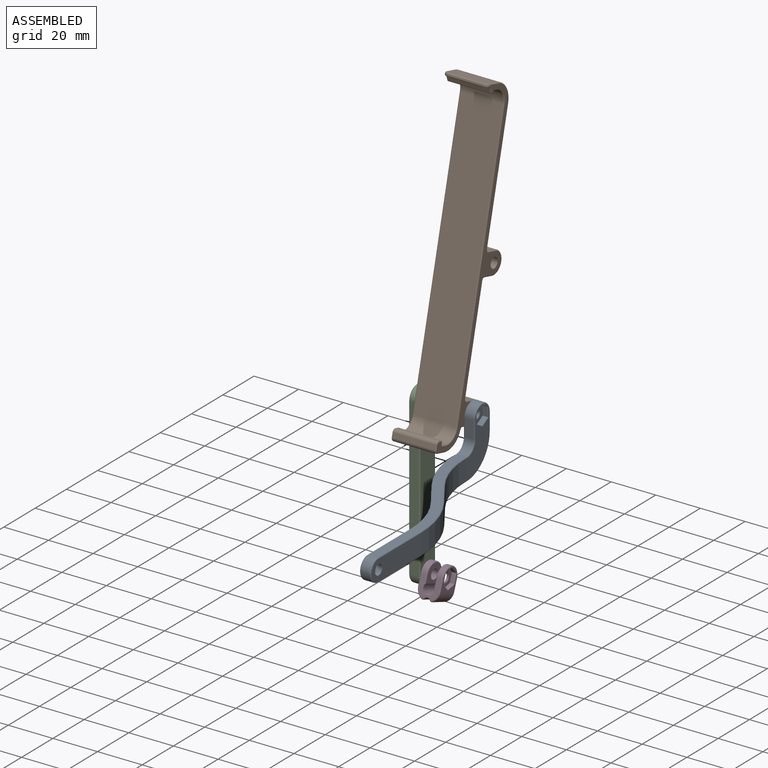
[diagram: assembled view]
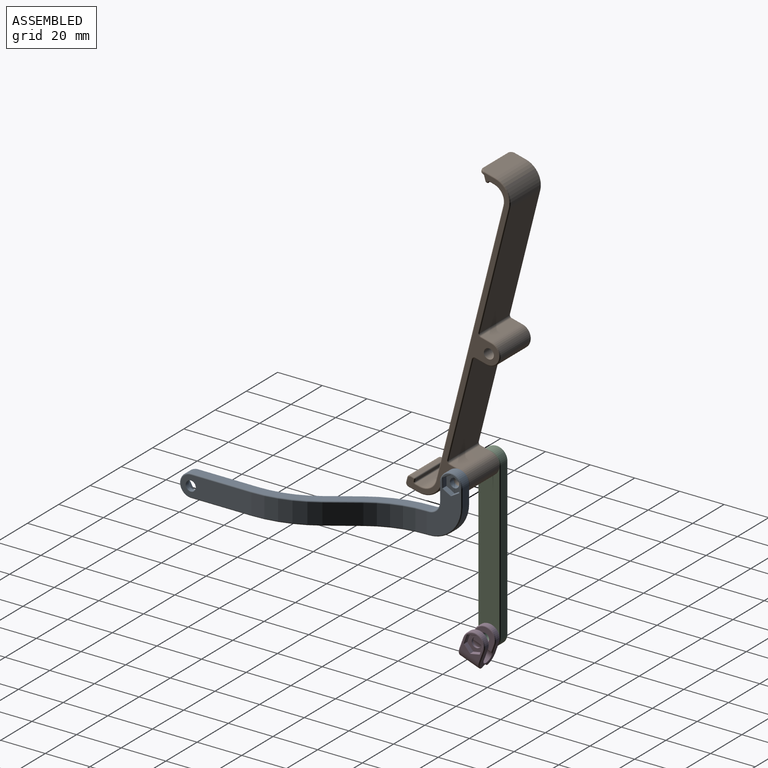
[diagram: assembled view, second angle]
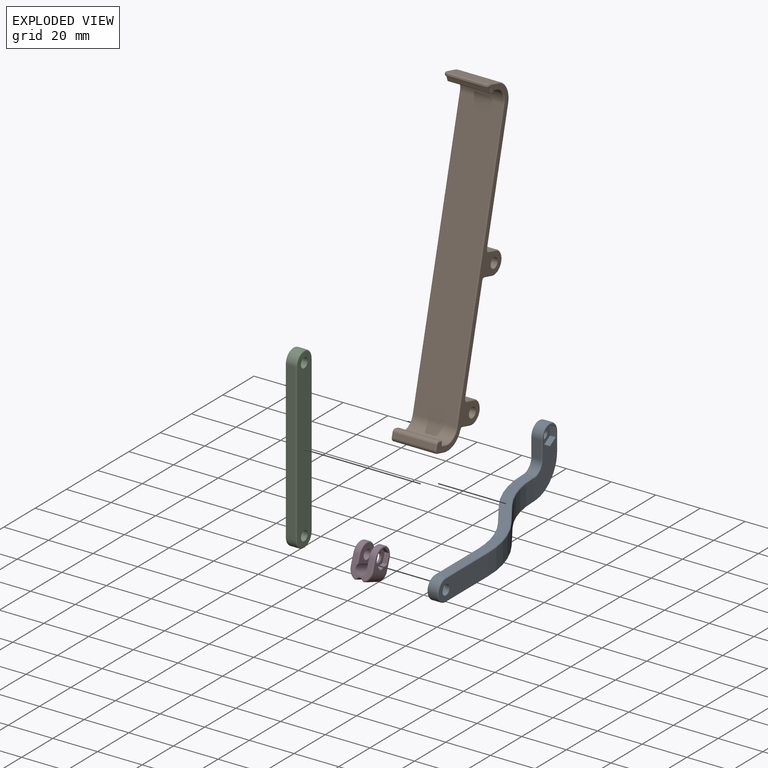
[diagram: exploded view]
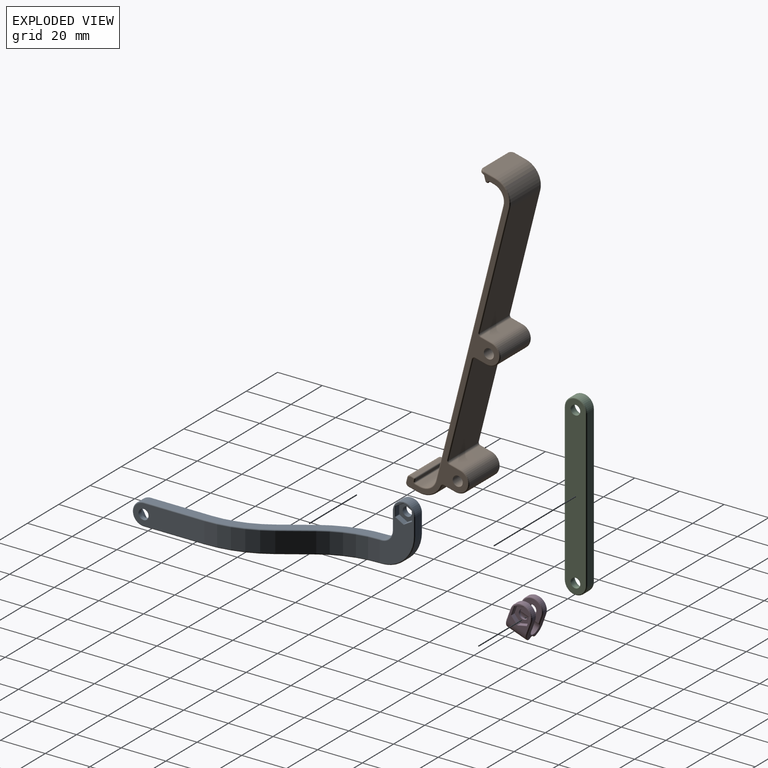
[diagram: exploded view, second angle]
ASSEMBLY  parts=4 mates=3
PART A: 80 faces, bbox 36.2x111.6x29.6 mm
  f0: plane 27x15.19mm, normal (1,0,0), area 200mm2, adj f12,f23,f25,f27,f29,f31,f33,f35
  f1: cylinder r=2.25mm len=4.5mm, axis (1,0,0), area 28.3mm2, adj f7,f59
  f2: cylinder r=2.1mm len=4.2mm, axis (1,0,0), area 33mm2, adj f4,f58
  f3: plane 8x4mm, normal (0,1,0), area 32mm2, adj f16,f19,f31,f48
  f4: plane 27x15.19mm, normal (-1,0,0), area 237.5mm2, adj f2,f13,f40,f42,f44,f46,f48,f50
  f5: plane 12.5x9mm, normal (-0.83,-0.56,0), area 135.5mm2, adj f11,f13,f36,f47
  f6: plane 31.71x9mm, normal (-1,0,0), area 226.7mm2, adj f11,f39,f41,f43,f74,f75,f76,f77
  f7: plane 31.71x9mm, normal (1,0,0), area 260.8mm2, adj f1,f14,f24,f26,f28
  f8: plane 12.5x9mm, normal (0.83,0.56,0), area 135.5mm2, adj f12,f14,f20,f32
  f9: plane 90x27.5mm, normal (0,0,1), area 382.3mm2, adj f17,f18,f20,f21,f22,f23,f24,f36
  f10: plane 90x27.5mm, normal (0,0,-1), area 382.3mm2, adj f18,f19,f28,f30,f32,f34,f35,f43
  f11: cylinder r=42mm len=23.41mm, axis (0,0,1), area 223.5mm2, adj f5,f6,f37,f45
  f12: cylinder r=42mm len=23.41mm, axis (0,0,1), area 223.5mm2, adj f0,f8,f21,f34
  f13: cylinder r=47mm len=26.2mm, axis (0,0,-1), area 250.1mm2, adj f4,f5,f38,f49
  f14: cylinder r=47mm len=26.2mm, axis (0,0,1), area 250.1mm2, adj f7,f8,f22,f30
  f15: plane 8x4mm, normal (0,-1,0), area 32mm2, adj f16,f17,f27,f44
  f16: cylinder r=5mm len=10mm, axis (1,0,0), area 62.8mm2, adj f3,f15,f29,f46
  f17: cylinder r=5mm len=5mm, axis (-1,0,0), area 31.4mm2, adj f9,f15,f25,f42
  f18: cylinder r=5mm len=10mm, axis (-1,0,0), area 62.8mm2, adj f9,f10,f26,f41
  f19: cylinder r=15mm len=15mm, axis (-1,0,0), area 94.2mm2, adj f3,f10,f33,f50
  f20: cylinder r=0.5mm len=12.77mm, axis (0.56,-0.83,0), area 11.8mm2, adj f8,f9,f21,f22
  f21: torus R=42.5mm, axis (0,0,1), area 19.6mm2, adj f9,f12,f20,f23
  f22: torus R=46.5mm, axis (0,0,1), area 21.7mm2, adj f9,f14,f20,f24
  f23: cylinder r=0.5mm len=0.69mm, axis (0,-1,0), area 0.5mm2, adj f0,f9,f21,f25
  f24: cylinder r=0.5mm len=27.21mm, axis (0,-1,0), area 21.4mm2, adj f7,f9,f22,f26
  f25: torus R=5.5mm, axis (1,0,0), area 6.4mm2, adj f0,f17,f23,f27
  f26: torus R=4.5mm, axis (-1,0,0), area 11.9mm2, adj f7,f18,f24,f28
  f27: cylinder r=0.5mm len=8mm, axis (0,0,-1), area 6.3mm2, adj f0,f15,f25,f29
  f28: cylinder r=0.5mm len=27.21mm, axis (0,1,0), area 21.4mm2, adj f7,f10,f26,f30
  f29: torus R=4.5mm, axis (1,0,0), area 11.9mm2, adj f0,f16,f27,f31
  f30: torus R=46.5mm, axis (0,0,1), area 21.7mm2, adj f10,f14,f28,f32
  f31: cylinder r=0.5mm len=8mm, axis (0,0,1), area 6.3mm2, adj f0,f3,f29,f33
  f32: cylinder r=0.5mm len=12.77mm, axis (-0.56,0.83,0), area 11.8mm2, adj f8,f10,f30,f34
  f33: torus R=14.5mm, axis (1,0,0), area 18.3mm2, adj f0,f19,f31,f35
  f34: torus R=42.5mm, axis (0,0,1), area 19.6mm2, adj f10,f12,f32,f35
  f35: cylinder r=0.5mm len=0.69mm, axis (0,1,0), area 0.5mm2, adj f0,f10,f33,f34
  f36: cylinder r=0.5mm len=12.77mm, axis (-0.56,0.83,0), area 11.8mm2, adj f5,f9,f37,f38
  f37: torus R=42.5mm, axis (0,0,1), area 19.6mm2, adj f9,f11,f36,f39
  f38: torus R=46.5mm, axis (0,0,1), area 21.7mm2, adj f9,f13,f36,f40
  f39: cylinder r=0.5mm len=27.21mm, axis (0,1,0), area 21.4mm2, adj f6,f9,f37,f41
  f40: cylinder r=0.5mm len=0.69mm, axis (0,1,0), area 0.5mm2, adj f4,f9,f38,f42
  f41: torus R=4.5mm, axis (-1,0,0), area 11.9mm2, adj f6,f18,f39,f43
  f42: torus R=5.5mm, axis (-1,0,0), area 6.4mm2, adj f4,f17,f40,f44
  f43: cylinder r=0.5mm len=27.21mm, axis (0,-1,0), area 21.4mm2, adj f6,f10,f41,f45
  f44: cylinder r=0.5mm len=8mm, axis (0,0,-1), area 6.3mm2, adj f4,f15,f42,f46
  f45: torus R=42.5mm, axis (0,0,1), area 19.6mm2, adj f10,f11,f43,f47
  f46: torus R=4.5mm, axis (-1,0,0), area 11.9mm2, adj f4,f16,f44,f48
  f47: cylinder r=0.5mm len=12.77mm, axis (0.56,-0.83,0), area 11.8mm2, adj f5,f10,f45,f49
  f48: cylinder r=0.5mm len=8mm, axis (0,0,1), area 6.3mm2, adj f3,f4,f46,f50
  f49: torus R=46.5mm, axis (0,0,1), area 21.7mm2, adj f10,f13,f47,f51
  f50: torus R=14.5mm, axis (-1,0,0), area 18.3mm2, adj f4,f19,f48,f51
  f51: cylinder r=0.5mm len=0.69mm, axis (0,-1,0), area 0.5mm2, adj f4,f10,f49,f50
  f52: plane 4.21x2.3mm, normal (0,-1,-0.01), area 9.7mm2, adj f53,f57,f58,f66
  f53: plane 3.68x2.3mm, normal (0,-0.49,-0.87), area 9.7mm2, adj f52,f54,f58,f68
  f54: plane 3.62x2.3mm, normal (0,0.51,-0.86), area 9.7mm2, adj f53,f55,f58,f71
  f55: plane 4.1x2.3mm, normal (0,1,0.01), area 9.4mm2, adj f54,f58,f69,f73
  f56: plane 3.58x2.3mm, normal (0,0.49,0.87), area 9.4mm2, adj f57,f58,f69,f70
  f57: plane 3.62x2.3mm, normal (0,-0.51,0.86), area 9.7mm2, adj f52,f56,f58,f67
  f58: plane 8.43x7.35mm, normal (1,0,0), area 32.3mm2, adj f2,f52,f53,f54,f55,f56,f57,f69
  f59: plane 8.31x7.2mm, normal (-1,0,0), area 29mm2, adj f1,f60,f61,f62,f63,f64,f65
  f60: plane 3.6x2.8mm, normal (0,0.87,-0.5), area 11.6mm2, adj f59,f61,f65,f76
  f61: plane 4.16x2.8mm, normal (0,0,-1), area 11.6mm2, adj f59,f60,f62,f74
  f62: plane 3.6x2.8mm, normal (0,-0.87,-0.5), area 11.6mm2, adj f59,f61,f63,f75
  f63: plane 3.6x2.8mm, normal (0,-0.87,0.5), area 11.6mm2, adj f59,f62,f64,f77
  f64: plane 4.16x2.8mm, normal (0,0,1), area 11.6mm2, adj f59,f63,f65,f79
  f65: plane 3.6x2.8mm, normal (0,0.87,0.5), area 11.6mm2, adj f59,f60,f64,f78
  f66: cylinder r=0.2mm len=4.45mm, axis (0,0.01,-1), area 1.4mm2, adj f0,f52,f67,f68
  f67: cylinder r=0.2mm len=3.92mm, axis (0,-0.86,-0.51), area 1.4mm2, adj f0,f57,f66,f70
  f68: cylinder r=0.2mm len=3.98mm, axis (0,0.87,-0.49), area 1.4mm2, adj f0,f53,f66,f71
  f69: cylinder r=0.2mm len=2.3mm, axis (-1,0,0), area 0.5mm2, adj f55,f56,f58,f72
  f70: cylinder r=0.2mm len=3.77mm, axis (0,-0.87,0.49), area 1.3mm2, adj f0,f56,f67,f72
  f71: cylinder r=0.2mm len=3.92mm, axis (0,0.86,0.51), area 1.4mm2, adj f0,f54,f68,f73
  f72: torus R=0.4mm, axis (1,0,0), area 0.1mm2, adj f0,f69,f70,f73
  f73: cylinder r=0.2mm len=4.22mm, axis (0,-0.01,1), area 1.3mm2, adj f0,f55,f71,f72
  f74: cylinder r=0.2mm len=4.39mm, axis (0,-1,0), area 1.3mm2, adj f6,f61,f75,f76
  f75: cylinder r=0.2mm len=3.9mm, axis (0,-0.5,0.87), area 1.3mm2, adj f6,f62,f74,f77
  f76: cylinder r=0.2mm len=3.9mm, axis (0,-0.5,-0.87), area 1.3mm2, adj f6,f60,f74,f78
  f77: cylinder r=0.2mm len=3.9mm, axis (0,0.5,0.87), area 1.3mm2, adj f6,f63,f75,f79
  f78: cylinder r=0.2mm len=3.9mm, axis (0,0.5,-0.87), area 1.3mm2, adj f6,f65,f76,f79
  f79: cylinder r=0.2mm len=4.39mm, axis (0,1,0), area 1.3mm2, adj f6,f64,f77,f78
PART B: 121 faces, bbox 20.3x27.6x142.5 mm
  f0: plane 55.5x19mm, normal (0,1,0), area 1054.5mm2, adj f27,f42,f44,f57
  f1: plane 19x6.5mm, normal (0,0,1), area 122.5mm2, adj f27,f45,f47,f49,f51,f53
  f2: plane 16x0.5mm, normal (0,-1,0), area 8mm2, adj f31,f32,f49,f114
  f3: plane 18.96x1.27mm, normal (0,0,-1), area 23.1mm2, adj f33,f112,f114,f116
  f4: plane 19x2mm, normal (0,-0.87,-0.5), area 43.9mm2, adj f33,f34,f106,f119
  f5: plane 19x0.42mm, normal (0,0,-1), area 8mm2, adj f34,f35,f102,f115
  f6: plane 19x0.5mm, normal (0,0.87,-0.5), area 11mm2, adj f35,f36,f98,f111
  f7: plane 19x1.63mm, normal (0,0,-1), area 31mm2, adj f25,f36,f94,f107
  f8: plane 123x19mm, normal (0,-1,0), area 2337mm2, adj f25,f26,f90,f103
  f9: plane 19x2mm, normal (0,0,1), area 38mm2, adj f26,f37,f86,f99
  f10: plane 19x1mm, normal (0,1,0), area 19mm2, adj f37,f38,f82,f95
  f11: plane 19x1.5mm, normal (0,0,1), area 28.5mm2, adj f29,f38,f78,f91
  f12: plane 19x2mm, normal (0,-1,0), area 38mm2, adj f29,f30,f74,f87
  f13: plane 19x4.51mm, normal (0,0,-1), area 85.8mm2, adj f28,f30,f70,f83
  f14: plane 19x5.1mm, normal (0,0,-1), area 96.9mm2, adj f15,f39,f64,f77
  f15: cylinder r=5mm len=19mm, axis (-1,0,0), area 298.5mm2, adj f14,f16,f62,f75
  f16: plane 19x5mm, normal (0,0,1), area 95mm2, adj f15,f40,f60,f73
  f17: plane 45x19mm, normal (0,1,0), area 855mm2, adj f40,f41,f56,f69
  f18: plane 19x5mm, normal (0,0,-1), area 95mm2, adj f19,f41,f52,f65
  f19: cylinder r=5mm len=19mm, axis (-1,0,0), area 298.5mm2, adj f18,f21,f50,f63
  f20: cylinder r=2.25mm len=20mm, axis (-1,0,0), area 282.7mm2, adj f23,f24
  f21: plane 19x5mm, normal (0,0,1), area 95mm2, adj f19,f42,f48,f61
  f22: cylinder r=2.25mm len=20mm, axis (-1,0,0), area 282.7mm2, adj f23,f24
  f23: plane 140x25mm, normal (1,0,0), area 469.6mm2, adj f20,f22,f32,f53,f55,f57,f59,f61
  f24: plane 140x25mm, normal (-1,0,0), area 469.6mm2, adj f20,f22,f31,f43,f44,f45,f46,f48
  f25: cylinder r=6mm len=19mm, axis (1,0,0), area 179.1mm2, adj f7,f8,f92,f105
  f26: cylinder r=6mm len=19mm, axis (-1,0,0), area 179.1mm2, adj f8,f9,f88,f101
  f27: cylinder r=9mm len=19mm, axis (-1,0,0), area 268.6mm2, adj f0,f1,f43,f55
  f28: cylinder r=9mm len=19mm, axis (1,0,0), area 242.9mm2, adj f13,f39,f68,f81
  f29: cylinder r=1.5mm len=19mm, axis (-1,0,0), area 44.8mm2, adj f11,f12,f76,f89
  f30: cylinder r=1.5mm len=19mm, axis (1,0,0), area 44.8mm2, adj f12,f13,f72,f85
  f31: cylinder r=2mm len=2mm, axis (0,0,-1), area 1.6mm2, adj f2,f24,f47,f110,f112
  f32: cylinder r=2mm len=2mm, axis (0,0,1), area 1.6mm2, adj f2,f23,f51,f116,f118
  f33: cylinder r=0.5mm len=19mm, axis (1,0,0), area 9.9mm2, adj f3,f4,f108,f110,f118,f120
  f34: cylinder r=0.5mm len=19mm, axis (-1,0,0), area 9.9mm2, adj f4,f5,f104,f117
  f35: cylinder r=0.5mm len=19mm, axis (1,0,0), area 9.9mm2, adj f5,f6,f100,f113
  f36: cylinder r=0.5mm len=19mm, axis (-1,0,0), area 9.9mm2, adj f6,f7,f96,f109
  f37: cylinder r=0.5mm len=19mm, axis (1,0,0), area 14.9mm2, adj f9,f10,f84,f97
  f38: cylinder r=0.5mm len=19mm, axis (1,0,0), area 14.9mm2, adj f10,f11,f80,f93
  f39: cylinder r=1mm len=19mm, axis (1,0,0), area 27mm2, adj f14,f28,f66,f79
  f40: cylinder r=1mm len=19mm, axis (1,0,0), area 29.8mm2, adj f16,f17,f58,f71
  f41: cylinder r=1mm len=19mm, axis (-1,0,0), area 29.8mm2, adj f17,f18,f54,f67
  f42: cylinder r=1mm len=19mm, axis (-1,0,0), area 29.8mm2, adj f0,f21,f46,f59
  f43: torus R=8.5mm, axis (1,0,0), area 10.9mm2, adj f24,f27,f44,f45
  f44: cylinder r=0.5mm len=55.5mm, axis (0,0,1), area 43.6mm2, adj f0,f24,f43,f46
  f45: cylinder r=0.5mm len=5mm, axis (0,-1,0), area 3.9mm2, adj f1,f24,f43,f47
  f46: torus R=1.5mm, axis (1,0,0), area 1.5mm2, adj f24,f42,f44,f48
  f47: torus R=1.5mm, axis (0,0,1), area 2.2mm2, adj f1,f31,f45,f49
  f48: cylinder r=0.5mm len=5mm, axis (0,-1,0), area 3.9mm2, adj f21,f24,f46,f50
  f49: cylinder r=0.5mm len=16mm, axis (-1,0,0), area 12.6mm2, adj f1,f2,f47,f51
  f50: torus R=4.5mm, axis (1,0,0), area 11.9mm2, adj f19,f24,f48,f52
  f51: torus R=1.5mm, axis (0,0,1), area 2.2mm2, adj f1,f32,f49,f53
  f52: cylinder r=0.5mm len=5mm, axis (0,1,0), area 3.9mm2, adj f18,f24,f50,f54
  f53: cylinder r=0.5mm len=5mm, axis (0,1,0), area 3.9mm2, adj f1,f23,f51,f55
  f54: torus R=1.5mm, axis (1,0,0), area 1.5mm2, adj f24,f41,f52,f56
  f55: torus R=8.5mm, axis (1,0,0), area 10.9mm2, adj f23,f27,f53,f57
  f56: cylinder r=0.5mm len=45mm, axis (0,0,1), area 35.3mm2, adj f17,f24,f54,f58
  f57: cylinder r=0.5mm len=55.5mm, axis (0,0,-1), area 43.6mm2, adj f0,f23,f55,f59
  f58: torus R=1.5mm, axis (1,0,0), area 1.5mm2, adj f24,f40,f56,f60
  f59: torus R=1.5mm, axis (1,0,0), area 1.5mm2, adj f23,f42,f57,f61
  f60: cylinder r=0.5mm len=5mm, axis (0,-1,0), area 3.9mm2, adj f16,f24,f58,f62
  f61: cylinder r=0.5mm len=5mm, axis (0,1,0), area 3.9mm2, adj f21,f23,f59,f63
  f62: torus R=4.5mm, axis (1,0,0), area 11.9mm2, adj f15,f24,f60,f64
  f63: torus R=4.5mm, axis (1,0,0), area 11.9mm2, adj f19,f23,f61,f65
  f64: cylinder r=0.5mm len=5.1mm, axis (0,1,0), area 4mm2, adj f14,f24,f62,f66
  f65: cylinder r=0.5mm len=5mm, axis (0,-1,0), area 3.9mm2, adj f18,f23,f63,f67
  f66: torus R=1.5mm, axis (1,0,0), area 1.3mm2, adj f24,f39,f64,f68
  f67: torus R=1.5mm, axis (1,0,0), area 1.5mm2, adj f23,f41,f65,f69
  f68: torus R=8.5mm, axis (1,0,0), area 9.8mm2, adj f24,f28,f66,f70
  f69: cylinder r=0.5mm len=45mm, axis (0,0,-1), area 35.3mm2, adj f17,f23,f67,f71
  f70: cylinder r=0.5mm len=4.51mm, axis (0,1,0), area 3.5mm2, adj f13,f24,f68,f72
  f71: torus R=1.5mm, axis (1,0,0), area 1.5mm2, adj f23,f40,f69,f73
  f72: torus R=1mm, axis (1,0,0), area 1.6mm2, adj f24,f30,f70,f74
  f73: cylinder r=0.5mm len=5mm, axis (0,1,0), area 3.9mm2, adj f16,f23,f71,f75
  f74: cylinder r=0.5mm len=2mm, axis (0,0,-1), area 1.6mm2, adj f12,f24,f72,f76
  f75: torus R=4.5mm, axis (1,0,0), area 11.9mm2, adj f15,f23,f73,f77
  f76: torus R=1mm, axis (1,0,0), area 1.6mm2, adj f24,f29,f74,f78
  f77: cylinder r=0.5mm len=5.1mm, axis (0,-1,0), area 4mm2, adj f14,f23,f75,f79
  f78: cylinder r=0.5mm len=1.5mm, axis (0,-1,0), area 1.2mm2, adj f11,f24,f76,f80
  f79: torus R=1.5mm, axis (1,0,0), area 1.3mm2, adj f23,f39,f77,f81
  f80: sphere r=0.5mm, area 0.4mm2, adj f38,f78,f82
  f81: torus R=8.5mm, axis (1,0,0), area 9.8mm2, adj f23,f28,f79,f83
  f82: cylinder r=0.5mm len=1mm, axis (0,0,1), area 0.8mm2, adj f10,f24,f80,f84
  f83: cylinder r=0.5mm len=4.51mm, axis (0,-1,0), area 3.5mm2, adj f13,f23,f81,f85
  f84: torus R=1mm, axis (1,0,0), area 0.8mm2, adj f24,f37,f82,f86
  f85: torus R=1mm, axis (1,0,0), area 1.6mm2, adj f23,f30,f83,f87
  f86: cylinder r=0.5mm len=2mm, axis (0,-1,0), area 1.6mm2, adj f9,f24,f84,f88
  f87: cylinder r=0.5mm len=2mm, axis (0,0,1), area 1.6mm2, adj f12,f23,f85,f89
  f88: torus R=6.5mm, axis (1,0,0), area 7.6mm2, adj f24,f26,f86,f90
  f89: torus R=1mm, axis (1,0,0), area 1.6mm2, adj f23,f29,f87,f91
  f90: cylinder r=0.5mm len=123mm, axis (0,0,-1), area 96.6mm2, adj f8,f24,f88,f92
  f91: cylinder r=0.5mm len=1.5mm, axis (0,1,0), area 1.2mm2, adj f11,f23,f89,f93
  f92: torus R=6.5mm, axis (1,0,0), area 7.6mm2, adj f24,f25,f90,f94
  f93: sphere r=0.5mm, area 0.4mm2, adj f38,f91,f95
  f94: cylinder r=0.5mm len=1.63mm, axis (0,1,0), area 1.3mm2, adj f7,f24,f92,f96
  f95: cylinder r=0.5mm len=1mm, axis (0,0,-1), area 0.8mm2, adj f10,f23,f93,f97
  f96: torus R=1mm, axis (1,0,0), area 0.6mm2, adj f24,f36,f94,f98
  f97: torus R=1mm, axis (1,0,0), area 0.8mm2, adj f23,f37,f95,f99
  f98: cylinder r=0.5mm len=0.75mm, axis (0,0.5,0.87), area 0.5mm2, adj f6,f24,f96,f100
  f99: cylinder r=0.5mm len=2mm, axis (0,1,0), area 1.6mm2, adj f9,f23,f97,f101
  f100: sphere r=0.5mm, area 0.3mm2, adj f35,f98,f102
  f101: torus R=6.5mm, axis (1,0,0), area 7.6mm2, adj f23,f26,f99,f103
  f102: cylinder r=0.5mm len=0.5mm, axis (0,1,0), area 0.3mm2, adj f5,f24,f100,f104
  f103: cylinder r=0.5mm len=123mm, axis (0,0,1), area 96.6mm2, adj f8,f23,f101,f105
  f104: sphere r=0.5mm, area 0.3mm2, adj f34,f102,f106
  f105: torus R=6.5mm, axis (1,0,0), area 7.6mm2, adj f23,f25,f103,f107
  f106: cylinder r=0.5mm len=2.25mm, axis (0,0.5,-0.87), area 1.8mm2, adj f4,f24,f104,f108
  f107: cylinder r=0.5mm len=1.63mm, axis (0,-1,0), area 1.3mm2, adj f7,f23,f105,f109
  f108: torus R=1mm, axis (1,0,0), area 0.4mm2, adj f24,f33,f106,f110
  f109: torus R=1mm, axis (1,0,0), area 0.6mm2, adj f23,f36,f107,f111
  f110: bspline ~0.85x0.58mm, area 0.2mm2, adj f31,f33,f108,f112
  f111: cylinder r=0.5mm len=0.75mm, axis (0,-0.5,-0.87), area 0.5mm2, adj f6,f23,f109,f113
  f112: torus R=1.5mm, axis (0,0,-1), area 2mm2, adj f3,f31,f110,f114
  f113: sphere r=0.5mm, area 0.3mm2, adj f35,f111,f115
  f114: cylinder r=0.5mm len=16mm, axis (-1,0,0), area 12.6mm2, adj f2,f3,f112,f116
  f115: cylinder r=0.5mm len=0.5mm, axis (0,-1,0), area 0.3mm2, adj f5,f23,f113,f117
  f116: torus R=1.5mm, axis (0,0,-1), area 2mm2, adj f3,f32,f114,f118
  f117: sphere r=0.5mm, area 0.3mm2, adj f34,f115,f119
  f118: bspline ~0.85x0.58mm, area 0.2mm2, adj f32,f33,f116,f120
  f119: cylinder r=0.5mm len=2.25mm, axis (0,-0.5,0.87), area 1.8mm2, adj f4,f23,f117,f120
  f120: torus R=1mm, axis (1,0,0), area 0.4mm2, adj f23,f33,f118,f119
PART C: 22 faces, bbox 5x10.8x80.8 mm
  f0: cylinder r=2.15mm len=4.3mm, axis (-1,0,0), area 27mm2, adj f6,f11
  f1: cylinder r=2.15mm len=4.3mm, axis (-1,0,0), area 27mm2, adj f6,f9
  f2: plane 70x4mm, normal (0,-1,0), area 280mm2, adj f3,f5,f12,f16
  f3: cylinder r=5mm len=10mm, axis (-1,0,0), area 62.8mm2, adj f2,f4,f13,f17
  f4: plane 70x4mm, normal (0,1,0), area 280mm2, adj f3,f5,f15,f19
  f5: cylinder r=5mm len=10mm, axis (-1,0,0), area 62.8mm2, adj f2,f4,f14,f18
  f6: plane 79x9mm, normal (1,0,0), area 664.6mm2, adj f0,f1,f16,f17,f18,f19
  f7: plane 79x9mm, normal (-1,0,0), area 585.4mm2, adj f12,f13,f14,f15,f20,f21
  f8: cylinder r=3.65mm len=7.3mm, axis (-1,0,0), area 57.3mm2, adj f9,f20
  f9: plane 7.3x7.3mm, normal (-1,0,0), area 27.3mm2, adj f1,f8
  f10: cylinder r=3.65mm len=7.3mm, axis (-1,0,0), area 57.3mm2, adj f11,f21
  f11: plane 7.3x7.3mm, normal (-1,0,0), area 27.3mm2, adj f0,f10
  f12: cylinder r=0.5mm len=70mm, axis (0,0,-1), area 55mm2, adj f2,f7,f13,f14
  f13: torus R=4.5mm, axis (1,0,0), area 11.9mm2, adj f3,f7,f12,f15
  f14: torus R=4.5mm, axis (1,0,0), area 11.9mm2, adj f5,f7,f12,f15
  f15: cylinder r=0.5mm len=70mm, axis (0,0,1), area 55mm2, adj f4,f7,f13,f14
  f16: cylinder r=0.5mm len=70mm, axis (0,0,1), area 55mm2, adj f2,f6,f17,f18
  f17: torus R=4.5mm, axis (1,0,0), area 11.9mm2, adj f3,f6,f16,f19
  f18: torus R=4.5mm, axis (1,0,0), area 11.9mm2, adj f5,f6,f16,f19
  f19: cylinder r=0.5mm len=70mm, axis (0,0,-1), area 55mm2, adj f4,f6,f17,f18
  f20: torus R=4.15mm, axis (1,0,0), area 18.9mm2, adj f7,f8
  f21: torus R=4.15mm, axis (1,0,0), area 18.9mm2, adj f7,f10
PART D: 51 faces, bbox 10.8x10.8x15.1 mm
  f0: cylinder r=2.15mm len=4.3mm, axis (1,0,0), area 13.5mm2, adj f6,f14
  f1: plane 9.5x9mm, normal (-1,0,0), area 62.3mm2, adj f2,f11,f23,f24,f26
  f2: cylinder r=5mm len=9mm, axis (0,1,0), area 47.4mm2, adj f1,f21,f25,f28
  f3: cylinder r=1.5mm len=9mm, axis (0,1,0), area 24.7mm2, adj f21,f22,f29,f32
  f4: cylinder r=5mm len=9mm, axis (0,1,0), area 47.4mm2, adj f5,f22,f33,f36
  f5: plane 9.5x9mm, normal (1,0,0), area 25.5mm2, adj f4,f35,f37,f38,f45,f46,f47,f48
  f6: plane 9x8mm, normal (-1,0,0), area 48.8mm2, adj f0,f7,f42,f43,f44
  f7: cylinder r=2.5mm len=10mm, axis (0,1,0), area 110.3mm2, adj f6,f8,f9,f10,f39,f41,f42,f44
  f8: plane 9x8mm, normal (1,0,0), area 48.8mm2, adj f7,f11,f39,f40,f41
  f9: plane 9x8.98mm, normal (0,-1,0), area 38.1mm2, adj f7,f12,f13,f23,f25,f27,f29,f31
  f10: plane 9x8.98mm, normal (0,1,0), area 38.1mm2, adj f7,f12,f13,f26,f28,f30,f32,f34
  f11: cylinder r=2.15mm len=4.3mm, axis (1,0,0), area 40.5mm2, adj f1,f8
  f12: cylinder r=5mm len=10mm, axis (1,0,0), area 31.4mm2, adj f9,f10,f37,f43
  f13: cylinder r=5mm len=10mm, axis (1,0,0), area 31.4mm2, adj f9,f10,f24,f40
  f14: plane 8.43x7.36mm, normal (1,0,0), area 31.6mm2, adj f0,f15,f16,f17,f18,f19,f20
  f15: plane 4.21x1.8mm, normal (0,-1,-0.01), area 7.6mm2, adj f14,f16,f20,f47
  f16: plane 3.68x2.06mm, normal (0,-0.49,-0.87), area 7.6mm2, adj f14,f15,f17,f45
  f17: plane 3.62x2.16mm, normal (0,0.51,-0.86), area 7.6mm2, adj f14,f16,f18,f46
  f18: plane 4.21x1.8mm, normal (0,1,0.01), area 7.6mm2, adj f14,f17,f19,f48
  f19: plane 3.68x2.06mm, normal (0,0.49,0.87), area 7.6mm2, adj f14,f18,f20,f50
  f20: plane 3.62x2.16mm, normal (0,-0.51,0.86), area 7.6mm2, adj f14,f15,f19,f49
  f21: cylinder r=1mm len=9mm, axis (0,-1,0), area 12.9mm2, adj f2,f3,f27,f30
  f22: cylinder r=1mm len=9mm, axis (0,-1,0), area 12.9mm2, adj f3,f4,f31,f34
  f23: cylinder r=0.5mm len=5mm, axis (0,0,1), area 3.9mm2, adj f1,f9,f24,f25
  f24: torus R=4.5mm, axis (-1,0,0), area 11.9mm2, adj f1,f13,f23,f26
  f25: torus R=4.5mm, axis (0,-1,0), area 4mm2, adj f2,f9,f23,f27
  f26: cylinder r=0.5mm len=5mm, axis (0,0,-1), area 3.9mm2, adj f1,f10,f24,f28
  f27: torus R=0.5mm, axis (0,-1,0), area 0.9mm2, adj f9,f21,f25,f29
  f28: torus R=4.5mm, axis (0,-1,0), area 4mm2, adj f2,f10,f26,f30
  f29: torus R=2mm, axis (0,-1,0), area 2.4mm2, adj f3,f9,f27,f31
  f30: torus R=0.5mm, axis (0,-1,0), area 0.9mm2, adj f10,f21,f28,f32
  f31: torus R=0.5mm, axis (0,-1,0), area 0.9mm2, adj f9,f22,f29,f33
  f32: torus R=2mm, axis (0,-1,0), area 2.4mm2, adj f3,f10,f30,f34
  f33: torus R=4.5mm, axis (0,-1,0), area 4mm2, adj f4,f9,f31,f35
  f34: torus R=0.5mm, axis (0,-1,0), area 0.9mm2, adj f10,f22,f32,f36
  f35: cylinder r=0.5mm len=5mm, axis (0,0,-1), area 3.9mm2, adj f5,f9,f33,f37
  f36: torus R=4.5mm, axis (0,-1,0), area 4mm2, adj f4,f10,f34,f38
  f37: torus R=4.5mm, axis (-1,0,0), area 11.9mm2, adj f5,f12,f35,f38
  f38: cylinder r=0.5mm len=5mm, axis (0,0,1), area 3.9mm2, adj f5,f10,f36,f37
  f39: cylinder r=0.5mm len=5mm, axis (0,0,-1), area 3mm2, adj f7,f8,f9,f40
  f40: torus R=4.5mm, axis (1,0,0), area 11.9mm2, adj f8,f13,f39,f41
  f41: cylinder r=0.5mm len=5mm, axis (0,0,1), area 3mm2, adj f7,f8,f10,f40
  f42: cylinder r=0.5mm len=5mm, axis (0,0,-1), area 3mm2, adj f6,f7,f10,f43
  f43: torus R=4.5mm, axis (1,0,0), area 11.9mm2, adj f6,f12,f42,f44
  f44: cylinder r=0.5mm len=5mm, axis (0,0,1), area 3mm2, adj f6,f7,f9,f43
  f45: cylinder r=0.2mm len=3.98mm, axis (0,-0.87,0.49), area 1.4mm2, adj f5,f16,f46,f47
  f46: cylinder r=0.2mm len=3.92mm, axis (0,-0.86,-0.51), area 1.4mm2, adj f5,f17,f45,f48
  f47: cylinder r=0.2mm len=4.45mm, axis (0,-0.01,1), area 1.4mm2, adj f5,f15,f45,f49
  f48: cylinder r=0.2mm len=4.45mm, axis (0,0.01,-1), area 1.4mm2, adj f5,f18,f46,f50
  f49: cylinder r=0.2mm len=3.92mm, axis (0,0.86,0.51), area 1.4mm2, adj f5,f20,f47,f50
  f50: cylinder r=0.2mm len=3.98mm, axis (0,0.87,-0.49), area 1.4mm2, adj f5,f19,f48,f49
PLACE A t=(77,-68,-112.87)mm fixed
PLACE B rot(axis=(-1,0,0),14.2deg) t=(27.5,37.23,-32.4)mm
PLACE C t=(22.5,32,-159.87)mm
PLACE D rot(axis=(-1,0,0),20deg) t=(32.5,30.29,-164.57)mm
MATE revolute C.f0 <-> D.f43  axis (1,0,0) through (27.5,32,-159.87)mm
MATE revolute C.f1 <-> B.f15  axis (1,0,0) through (27.5,32,-89.87)mm
MATE revolute B.f15 <-> A.f2  axis (-1,0,0) through (47,32,-89.87)mm
